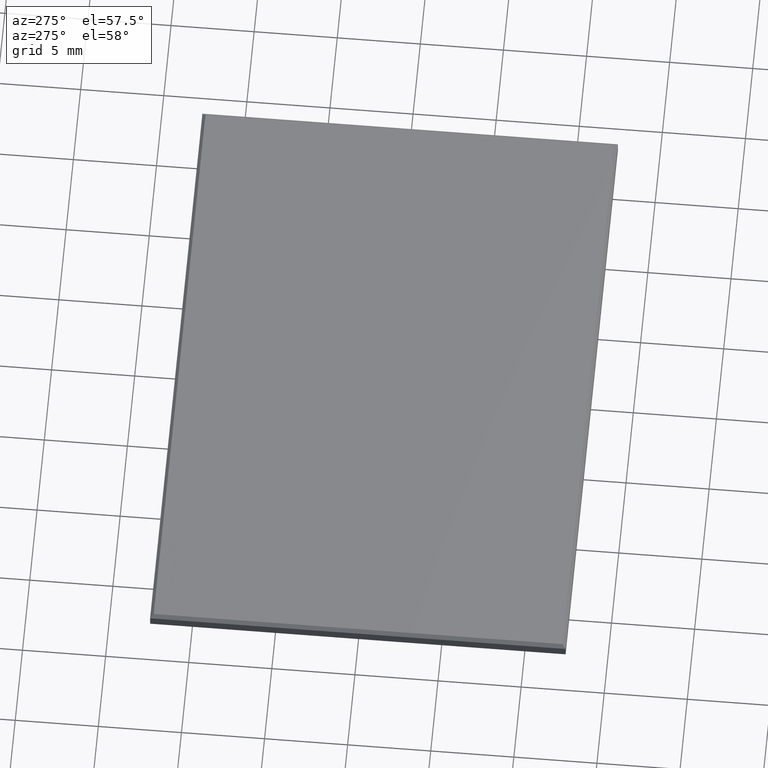
[diagram: clean part render]
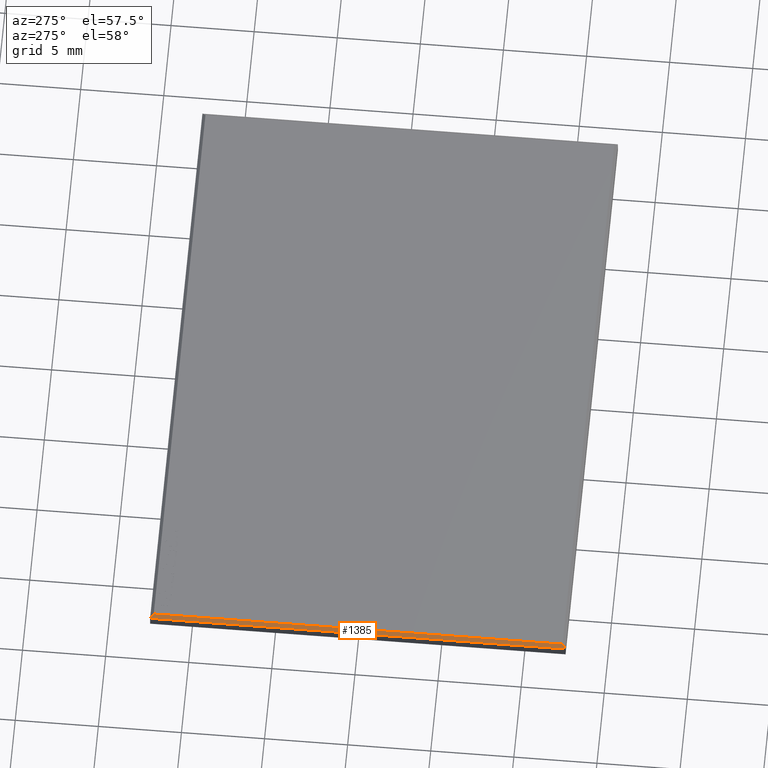
[diagram: same view with one face highlighted and labeled with its STEP entity id]
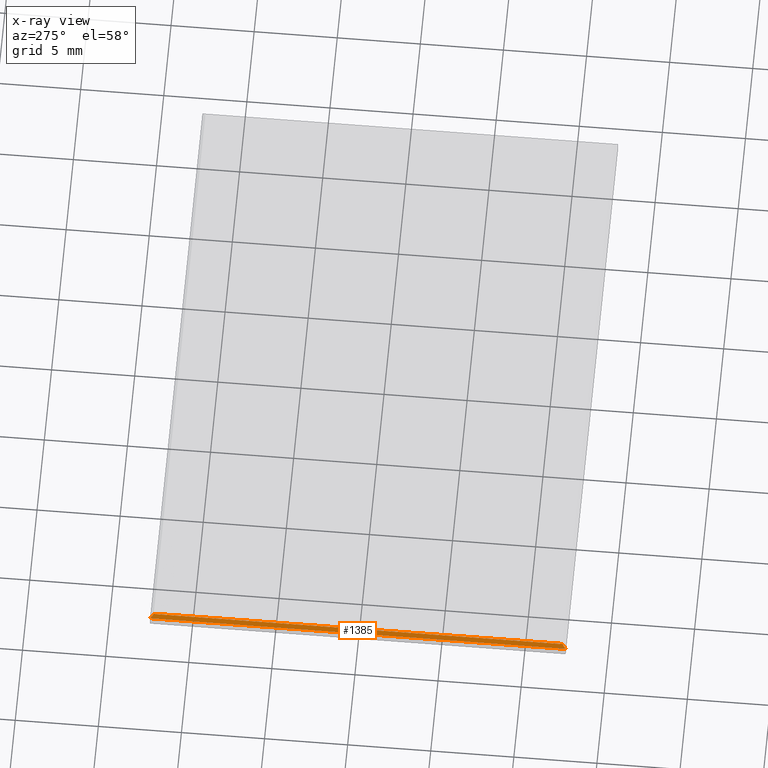
[diagram: x-ray of the same camera — body ghosted, the highlighted face saturated]
A machine part, auxiliary view. The second image highlights one B-rep face of the part: STEP entity #1385.
The next image is the same camera in x-ray: the body ghosted, the highlighted face saturated — about 0% of this face is hidden behind the body in this view.
In plain terms, the highlighted planar face has unit normal (-0.7071, -0, 0.7071).
Its self-contained STEP definition (entity closure, byte-faithful):
#1007 = VERTEX_POINT ( 'NONE', #3989 ) ;
#1011 = EDGE_CURVE ( 'NONE', #1007, #1031, #4040, .T. ) ;
#1031 = VERTEX_POINT ( 'NONE', #4073 ) ;
#1137 = VERTEX_POINT ( 'NONE', #4348 ) ;
#1145 = VERTEX_POINT ( 'NONE', #4316 ) ;
#1156 = EDGE_CURVE ( 'NONE', #1145, #1137, #4369, .T. ) ;
#1245 = EDGE_CURVE ( 'NONE', #1007, #1137, #4655, .T. ) ;
#1281 = ORIENTED_EDGE ( 'NONE', *, *, #1156, .F. ) ;
#1285 = EDGE_LOOP ( 'NONE', ( #1383, #1384, #1386, #1281 ) ) ;
#1381 = EDGE_CURVE ( 'NONE', #1145, #1031, #5115, .T. ) ;
#1383 = ORIENTED_EDGE ( 'NONE', *, *, #1381, .T. ) ;
#1384 = ORIENTED_EDGE ( 'NONE', *, *, #1011, .F. ) ;
#1385 = ADVANCED_FACE ( 'NONE', ( #5106 ), #5066, .T. ) ;
#1386 = ORIENTED_EDGE ( 'NONE', *, *, #1245, .T. ) ;
#3902 = DIRECTION ( 'NONE',  ( 2.775557561562891400E-016, -1.000000000000000000, 0.0000000000000000000 ) ) ;
#3989 = CARTESIAN_POINT ( 'NONE',  ( -17.99999999999999600, -12.49999999999999800, 0.2999999999999942700 ) ) ;
#4037 = DIRECTION ( 'NONE',  ( -2.775557561562891400E-016, 1.000000000000000000, 0.0000000000000000000 ) ) ;
#4038 = VECTOR ( 'NONE', #4037, 1000.000000000000000 ) ;
#4039 = CARTESIAN_POINT ( 'NONE',  ( -18.00000000000000400, 12.50000000000000200, 0.2999999999999942700 ) ) ;
#4040 = LINE ( 'NONE', #4039, #4038 ) ;
#4073 = CARTESIAN_POINT ( 'NONE',  ( -18.00000000000000400, 12.50000000000000200, 0.2999999999999942700 ) ) ;
#4316 = CARTESIAN_POINT ( 'NONE',  ( -17.79999999999999700, 12.29999999999999700, 0.5000000000000000000 ) ) ;
#4348 = CARTESIAN_POINT ( 'NONE',  ( -17.79999999999999000, -12.29999999999999400, 0.5000000000000000000 ) ) ;
#4367 = VECTOR ( 'NONE', #3902, 1000.000000000000000 ) ;
#4368 = CARTESIAN_POINT ( 'NONE',  ( -17.79999999999999000, -12.49999999999999800, 0.5000000000000000000 ) ) ;
#4369 = LINE ( 'NONE', #4368, #4367 ) ;
#4655 = LINE ( 'NONE', #4662, #4661 ) ;
#4661 = VECTOR ( 'NONE', #4700, 999.9999999999998900 ) ;
#4662 = CARTESIAN_POINT ( 'NONE',  ( -11.86666666666666200, -6.366666666666664500, 6.433333333333329100 ) ) ;
#4700 = DIRECTION ( 'NONE',  ( 0.5773502691896256200, 0.5773502691896258400, 0.5773502691896258400 ) ) ;
#5066 = PLANE ( 'NONE',  #5116 ) ;
#5101 = DIRECTION ( 'NONE',  ( -2.775557561562891400E-016, 1.000000000000000000, 0.0000000000000000000 ) ) ;
#5102 = DIRECTION ( 'NONE',  ( -0.7071067811865475700, -1.962615573354718900E-016, 0.7071067811865475700 ) ) ;
#5103 = CARTESIAN_POINT ( 'NONE',  ( -17.79999999999999400, -4.940492459581945000E-015, 0.5000000000000000000 ) ) ;
#5106 = FACE_OUTER_BOUND ( 'NONE', #1285, .T. ) ;
#5107 = DIRECTION ( 'NONE',  ( -0.5773502691896258400, 0.5773502691896257300, -0.5773502691896257300 ) ) ;
#5108 = VECTOR ( 'NONE', #5107, 999.9999999999998900 ) ;
#5109 = CARTESIAN_POINT ( 'NONE',  ( -11.86666666666666200, 6.366666666666664500, 6.433333333333332700 ) ) ;
#5115 = LINE ( 'NONE', #5109, #5108 ) ;
#5116 = AXIS2_PLACEMENT_3D ( 'NONE', #5103, #5102, #5101 ) ;